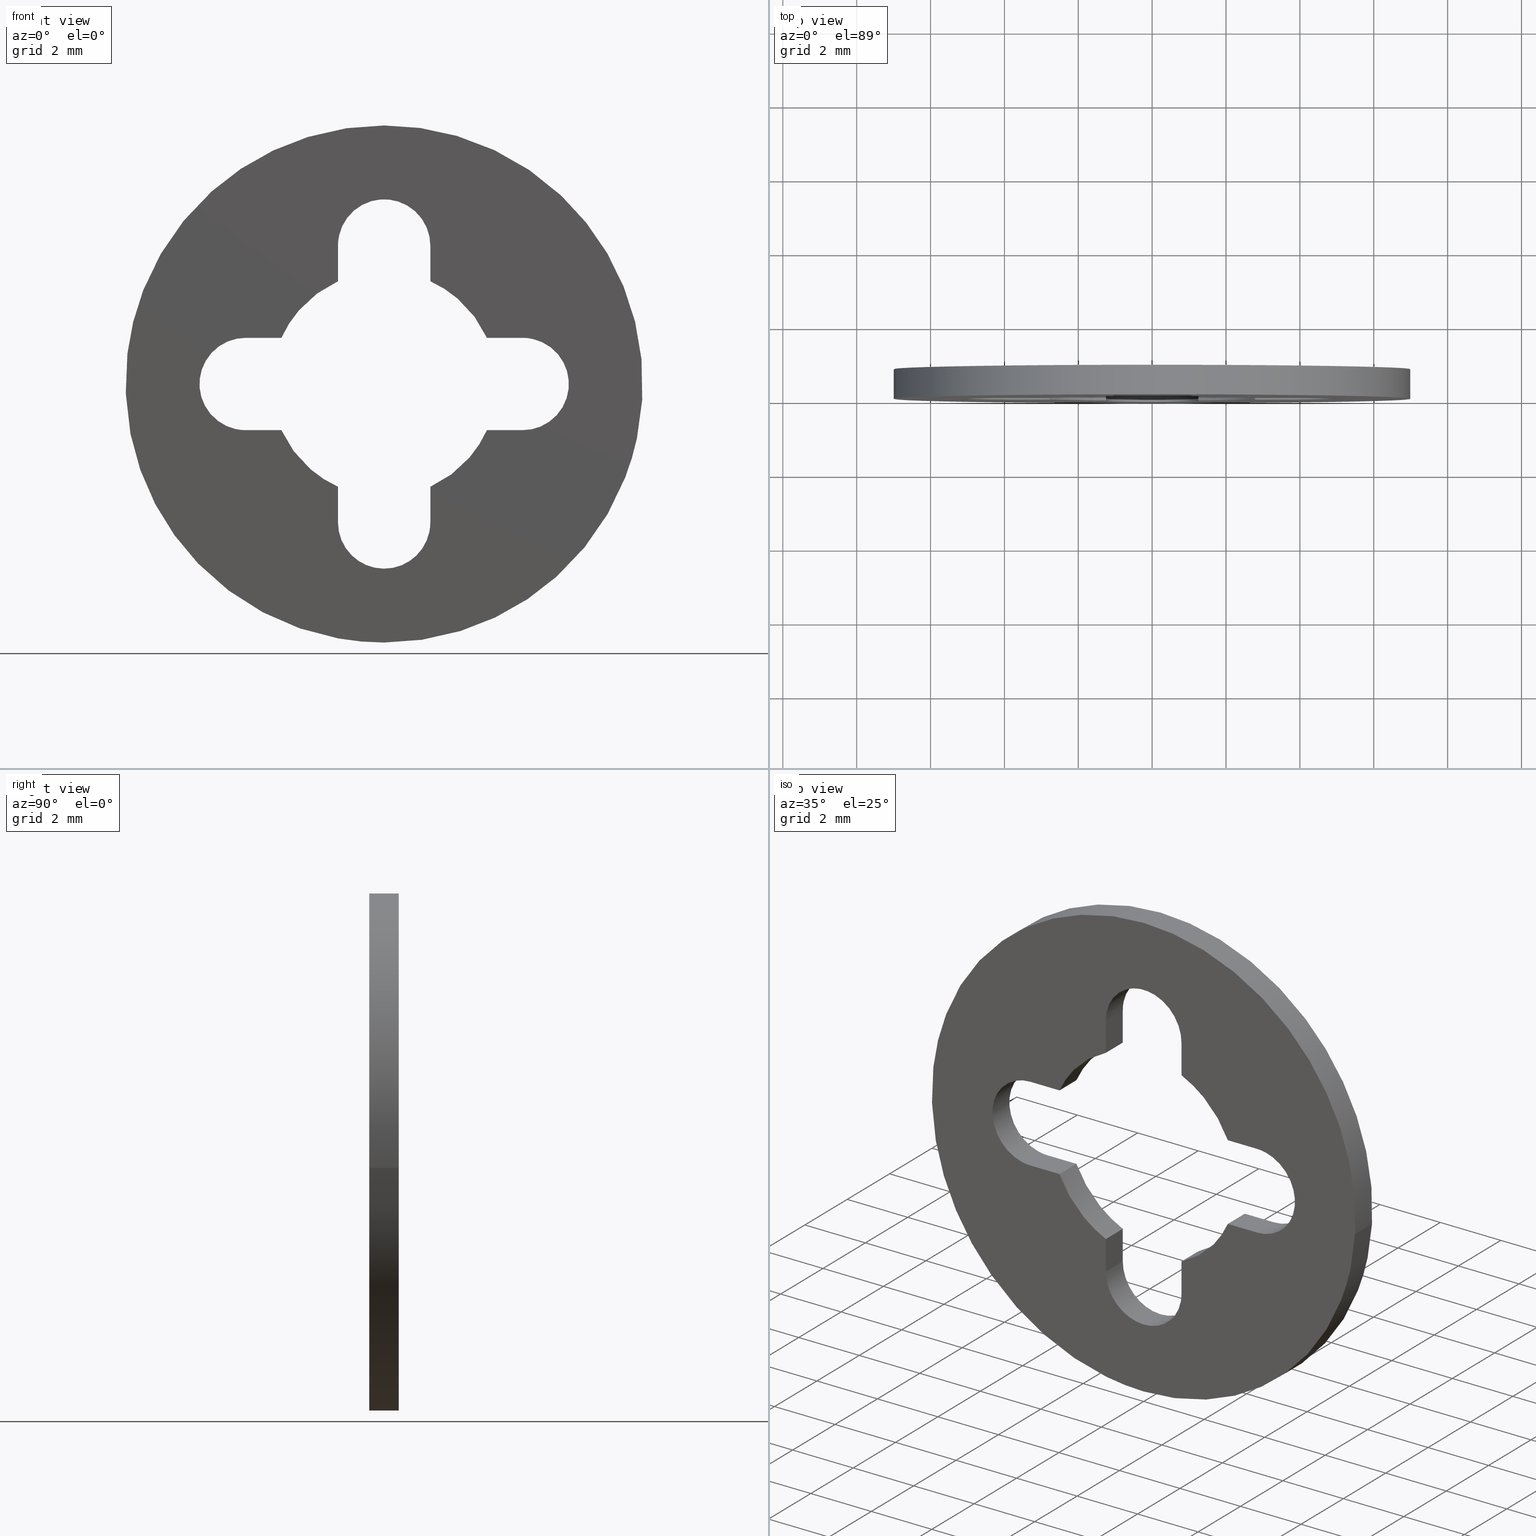
[diagram: canonical four-view strip — front | top / right | iso, engineering-drawing reading convention]
A machine part, canonical four-view strip (front | top / right | iso — engineering-drawing reading convention). The complete STEP part file that produces these views, byte-faithful:
ISO-10303-21;
HEADER;
/****************************************************************
 * Generated by software with PDE/Lib inside                    *
 * PDElib Version 4.4.1-0003, patched  Thursday August 19 11:58 *
 * International Technegroup Inc. (www.iti-oh.com)              *
 ****************************************************************/
FILE_DESCRIPTION((''),'2;1');
FILE_NAME('','2005-07-15T17:43:17',(''),(''),'','CADfix','');
FILE_SCHEMA(('AUTOMOTIVE_DESIGN'));
ENDSEC;
DATA;
#5=APPLICATION_CONTEXT('automotive design');
#6=APPLICATION_PROTOCOL_DEFINITION('Draft International Standard','automotive_design',1998,#5);
#7=PRODUCT_CONTEXT('None',#5,'mechanical');
#8=PRODUCT('washer','','None',(#7));
#9=PRODUCT_RELATED_PRODUCT_CATEGORY('part','description',(#8));
#10=PRODUCT_DEFINITION_FORMATION('None','None',#8);
#11=PRODUCT_DEFINITION_CONTEXT('part definition',#5,'design');
#12=PRODUCT_DEFINITION('None','None',#10,#11);
#18=(NAMED_UNIT(*)PLANE_ANGLE_UNIT()SI_UNIT($,.RADIAN.));
#19=DIMENSIONAL_EXPONENTS(0.0,0.0,0.0,0.0,0.0,0.0,0.0);
#20=PLANE_ANGLE_MEASURE_WITH_UNIT(PLANE_ANGLE_MEASURE(0.017453292500000),#18);
#24=(CONVERSION_BASED_UNIT('DEGREE',#20)NAMED_UNIT(#19)PLANE_ANGLE_UNIT());
#28=(NAMED_UNIT(*)SI_UNIT($,.STERADIAN.)SOLID_ANGLE_UNIT());
#32=(LENGTH_UNIT()NAMED_UNIT(*)SI_UNIT(.MILLI.,.METRE.));
#34=UNCERTAINTY_MEASURE_WITH_UNIT(LENGTH_MEASURE(0.001000000000000),#32,'DISTANCE_ACCURACY_VALUE','');
#36=(GEOMETRIC_REPRESENTATION_CONTEXT(3)GLOBAL_UNCERTAINTY_ASSIGNED_CONTEXT((#34))GLOBAL_UNIT_ASSIGNED_CONTEXT((#24,#28,#32))REPRESENTATION_CONTEXT('None','None'));
#37=AXIS2_PLACEMENT_3D('',#38,#39,#40);
#38=CARTESIAN_POINT('',(0.0,0.0,0.0));
#39=DIRECTION('',(0.0,0.0,1.0));
#40=DIRECTION('',(1.0,0.0,0.0));
#41=ADVANCED_BREP_SHAPE_REPRESENTATION('',(#37,#975),#36);
#42=PRODUCT_DEFINITION_SHAPE('','',#12);
#43=SHAPE_DEFINITION_REPRESENTATION(#42,#41);
#44=CARTESIAN_POINT('',(-6.951066684545665,0.820000000000024,0.826239642597309));
#45=CARTESIAN_POINT('',(-6.974713308140240,0.820000000000024,0.627303100465844));
#46=CARTESIAN_POINT('',(-6.986943588953067,0.820000000000024,0.427339776743999));
#47=CARTESIAN_POINT('',(-7.414283365697066,0.820000000000024,-6.559603812209068));
#48=CARTESIAN_POINT('',(-0.427339776743999,0.820000000000024,-6.986943588953067));
#49=CARTESIAN_POINT('',(6.559603812209068,0.820000000000024,-7.414283365697066));
#50=CARTESIAN_POINT('',(6.986943588953067,0.820000000000024,-0.427339776743999));
#51=CARTESIAN_POINT('',(-6.951066684545665,-0.020500000000001,0.826239642597309));
#52=CARTESIAN_POINT('',(-6.974713308140240,-0.020500000000001,0.627303100465844));
#53=CARTESIAN_POINT('',(-6.986943588953067,-0.020500000000001,0.427339776743999));
#54=CARTESIAN_POINT('',(-7.414283365697066,-0.020500000000001,-6.559603812209068));
#55=CARTESIAN_POINT('',(-0.427339776743999,-0.020500000000001,-6.986943588953067));
#56=CARTESIAN_POINT('',(6.559603812209068,-0.020500000000001,-7.414283365697066));
#57=CARTESIAN_POINT('',(6.986943588953067,-0.020500000000001,-0.427339776743999));
#65=(BOUNDED_SURFACE()B_SPLINE_SURFACE(2,1,((#44,#51),(#45,#52),(#46,#53),(#47,#54),(#48,#55),(#49,#56),(#50,#57)),.UNSPECIFIED.,.F.,.F.,.U.)B_SPLINE_SURFACE_WITH_KNOTS((3,2,2,3),(2,2),(0.0,0.463919189857867,12.061898936304530,23.659878682751181),(0.0,1.0),.UNSPECIFIED.)GEOMETRIC_REPRESENTATION_ITEM()RATIONAL_B_SPLINE_SURFACE(((0.977505800795127,0.977505800795127),(0.988284271247462,0.988284271247462),(1.0,1.0),(0.707106781186548,0.707106781186548),(1.0,1.0),(0.707106781186548,0.707106781186548),(1.0,1.0)))REPRESENTATION_ITEM('')SURFACE());
#66=CARTESIAN_POINT('',(-6.951067210688900,5.966703E-014,0.826235216185896));
#67=VERTEX_POINT('',#66);
#68=CARTESIAN_POINT('',(0.0,0.0,-7.0));
#69=VERTEX_POINT('',#68);
#70=CARTESIAN_POINT('',(-6.951067210688900,5.966703E-014,0.826235216185896));
#71=CARTESIAN_POINT('',(-7.0,0.0,0.414566600960148));
#72=CARTESIAN_POINT('',(-7.0,0.0,0.0));
#73=CARTESIAN_POINT('',(-6.999999999999999,0.0,-6.999999999999999));
#74=CARTESIAN_POINT('',(0.0,0.0,-7.0));
#82=(BOUNDED_CURVE()B_SPLINE_CURVE(2,(#70,#71,#72,#73,#74),.UNSPECIFIED.,.F.,.U.)B_SPLINE_CURVE_WITH_KNOTS((3,2,3),(0.229562581136241,0.250000000000000,0.500000000000000),.UNSPECIFIED.)CURVE()GEOMETRIC_REPRESENTATION_ITEM()RATIONAL_B_SPLINE_CURVE((0.956026965128767,0.976056074419019,1.0,0.707106781186547,1.0))REPRESENTATION_ITEM(''));
#83=EDGE_CURVE('',#67,#69,#82,.T.);
#84=ORIENTED_EDGE('',*,*,#83,.F.);
#85=CARTESIAN_POINT('',(-6.951067204199181,0.800000000000023,0.826235270783800));
#86=VERTEX_POINT('',#85);
#87=CARTESIAN_POINT('',(-6.951067204199181,0.800000000000023,0.826235270783800));
#88=CARTESIAN_POINT('',(-6.951067210688900,5.966703E-014,0.826235216185896));
#89=QUASI_UNIFORM_CURVE('',1,(#87,#88),.UNSPECIFIED.,.F.,.U.);
#90=EDGE_CURVE('',#86,#67,#89,.T.);
#91=ORIENTED_EDGE('',*,*,#90,.F.);
#92=CARTESIAN_POINT('',(0.0,0.800000000000023,-7.0));
#93=VERTEX_POINT('',#92);
#94=CARTESIAN_POINT('',(-6.951067204199181,0.800000000000023,0.826235270783800));
#95=CARTESIAN_POINT('',(-7.0,0.800000000000023,0.414566628547695));
#96=CARTESIAN_POINT('',(-7.0,0.800000000000023,0.0));
#97=CARTESIAN_POINT('',(-6.999999999999999,0.800000000000023,-6.999999999999999));
#98=CARTESIAN_POINT('',(0.0,0.800000000000023,-7.0));
#106=(BOUNDED_CURVE()B_SPLINE_CURVE(2,(#94,#95,#96,#97,#98),.UNSPECIFIED.,.F.,.U.)B_SPLINE_CURVE_WITH_KNOTS((3,2,3),(0.229562579808786,0.250000000000000,0.500000000000000),.UNSPECIFIED.)CURVE()GEOMETRIC_REPRESENTATION_ITEM()RATIONAL_B_SPLINE_CURVE((0.956026962526900,0.976056072863809,1.0,0.707106781186547,1.0))REPRESENTATION_ITEM(''));
#107=EDGE_CURVE('',#86,#93,#106,.T.);
#108=ORIENTED_EDGE('',*,*,#107,.T.);
#109=CARTESIAN_POINT('',(6.986943739989564,0.800000000000023,-0.427337307304794));
#110=VERTEX_POINT('',#109);
#111=CARTESIAN_POINT('',(0.0,0.800000000000023,-7.0));
#112=CARTESIAN_POINT('',(6.584944800046739,0.800000000000023,-6.999999999999999));
#113=CARTESIAN_POINT('',(6.986943739989564,0.800000000000023,-0.427337307304794));
#121=(BOUNDED_CURVE()B_SPLINE_CURVE(2,(#111,#112,#113),.UNSPECIFIED.,.F.,.U.)B_SPLINE_CURVE_WITH_KNOTS((3,3),(0.500000000000000,0.739333023226263),.UNSPECIFIED.)CURVE()GEOMETRIC_REPRESENTATION_ITEM()RATIONAL_B_SPLINE_CURVE((1.0,0.719603921835620,0.976072172374189))REPRESENTATION_ITEM(''));
#122=EDGE_CURVE('',#93,#110,#121,.T.);
#123=ORIENTED_EDGE('',*,*,#122,.T.);
#124=CARTESIAN_POINT('',(6.986943741874936,3.927761E-014,-0.427337276478874));
#125=VERTEX_POINT('',#124);
#126=CARTESIAN_POINT('',(6.986943739989564,0.800000000000023,-0.427337307304794));
#127=CARTESIAN_POINT('',(6.986943741874936,3.927761E-014,-0.427337276478874));
#128=QUASI_UNIFORM_CURVE('',1,(#126,#127),.UNSPECIFIED.,.F.,.U.);
#129=EDGE_CURVE('',#110,#125,#128,.T.);
#130=ORIENTED_EDGE('',*,*,#129,.T.);
#131=CARTESIAN_POINT('',(0.0,0.0,-7.0));
#132=CARTESIAN_POINT('',(6.584944829153351,0.0,-6.999999999999999));
#133=CARTESIAN_POINT('',(6.986943741874936,3.927761E-014,-0.427337276478874));
#141=(BOUNDED_CURVE()B_SPLINE_CURVE(2,(#131,#132,#133),.UNSPECIFIED.,.F.,.U.)B_SPLINE_CURVE_WITH_KNOTS((3,3),(0.500000000000000,0.739333023987528),.UNSPECIFIED.)CURVE()GEOMETRIC_REPRESENTATION_ITEM()RATIONAL_B_SPLINE_CURVE((1.0,0.719603920943743,0.976072174005725))REPRESENTATION_ITEM(''));
#142=EDGE_CURVE('',#69,#125,#141,.T.);
#143=ORIENTED_EDGE('',*,*,#142,.F.);
#144=EDGE_LOOP('',(#84,#91,#108,#123,#130,#143));
#145=FACE_OUTER_BOUND('',#144,.T.);
#146=ADVANCED_FACE('',(#145),#65,.T.);
#147=CARTESIAN_POINT('',(6.986943588953067,0.820000000000024,-0.427339776743999));
#148=CARTESIAN_POINT('',(7.414283365697066,0.820000000000024,6.559603812209068));
#149=CARTESIAN_POINT('',(0.427339776743999,0.820000000000024,6.986943588953067));
#150=CARTESIAN_POINT('',(-6.170804435876506,0.820000000000024,7.390503377127691));
#151=CARTESIAN_POINT('',(-6.951066684545665,0.820000000000024,0.826239642597309));
#152=CARTESIAN_POINT('',(6.986943588953067,-0.020500000000001,-0.427339776743999));
#153=CARTESIAN_POINT('',(7.414283365697066,-0.020500000000001,6.559603812209068));
#154=CARTESIAN_POINT('',(0.427339776743999,-0.020500000000001,6.986943588953067));
#155=CARTESIAN_POINT('',(-6.170804435876506,-0.020500000000001,7.390503377127691));
#156=CARTESIAN_POINT('',(-6.951066684545665,-0.020500000000001,0.826239642597309));
#164=(BOUNDED_SURFACE()B_SPLINE_SURFACE(2,1,((#147,#152),(#148,#153),(#149,#154),(#150,#155),(#151,#156)),.UNSPECIFIED.,.F.,.F.,.U.)B_SPLINE_SURFACE_WITH_KNOTS((3,2,3),(2,2),(0.0,11.597979746446660,22.732040303035451),(0.0,1.0),.UNSPECIFIED.)GEOMETRIC_REPRESENTATION_ITEM()RATIONAL_B_SPLINE_SURFACE(((1.0,1.0),(0.707106781186548,0.707106781186548),(1.0,1.0),(0.718822509939086,0.718822509939086),(0.977505800795127,0.977505800795127)))REPRESENTATION_ITEM('')SURFACE());
#165=CARTESIAN_POINT('',(0.0,0.0,7.0));
#166=VERTEX_POINT('',#165);
#167=CARTESIAN_POINT('',(0.0,0.0,7.0));
#168=CARTESIAN_POINT('',(-6.217225668633081,0.0,7.0));
#169=CARTESIAN_POINT('',(-6.951067210688900,5.966703E-014,0.826235216185896));
#177=(BOUNDED_CURVE()B_SPLINE_CURVE(2,(#167,#168,#169),.UNSPECIFIED.,.F.,.U.)B_SPLINE_CURVE_WITH_KNOTS((3,3),(0.0,0.229562581136241),.UNSPECIFIED.)CURVE()GEOMETRIC_REPRESENTATION_ITEM()RATIONAL_B_SPLINE_CURVE((1.0,0.731050706767529,0.956026965128767))REPRESENTATION_ITEM(''));
#178=EDGE_CURVE('',#166,#67,#177,.T.);
#179=ORIENTED_EDGE('',*,*,#178,.F.);
#180=CARTESIAN_POINT('',(6.986943741874936,3.927761E-014,-0.427337276478874));
#181=CARTESIAN_POINT('',(7.0,0.0,-0.213868089452344));
#182=CARTESIAN_POINT('',(7.0,0.0,0.0));
#183=CARTESIAN_POINT('',(6.999999999999999,0.0,6.999999999999999));
#184=CARTESIAN_POINT('',(0.0,0.0,7.0));
#192=(BOUNDED_CURVE()B_SPLINE_CURVE(2,(#180,#181,#182,#183,#184),.UNSPECIFIED.,.F.,.U.)B_SPLINE_CURVE_WITH_KNOTS((3,2,3),(0.739333023987528,0.750000000000000,1.0),.UNSPECIFIED.)CURVE()GEOMETRIC_REPRESENTATION_ITEM()RATIONAL_B_SPLINE_CURVE((0.976072174005725,0.987502860242804,1.0,0.707106781186547,1.0))REPRESENTATION_ITEM(''));
#193=EDGE_CURVE('',#125,#166,#192,.T.);
#194=ORIENTED_EDGE('',*,*,#193,.F.);
#195=ORIENTED_EDGE('',*,*,#129,.F.);
#196=CARTESIAN_POINT('',(0.0,0.800000000000023,7.0));
#197=VERTEX_POINT('',#196);
#198=CARTESIAN_POINT('',(6.986943739989564,0.800000000000023,-0.427337307304794));
#199=CARTESIAN_POINT('',(7.0,0.800000000000023,-0.213868104908519));
#200=CARTESIAN_POINT('',(7.0,0.800000000000023,0.0));
#201=CARTESIAN_POINT('',(6.999999999999999,0.800000000000023,6.999999999999999));
#202=CARTESIAN_POINT('',(0.0,0.800000000000023,7.0));
#210=(BOUNDED_CURVE()B_SPLINE_CURVE(2,(#198,#199,#200,#201,#202),.UNSPECIFIED.,.F.,.U.)B_SPLINE_CURVE_WITH_KNOTS((3,2,3),(0.739333023226263,0.750000000000000,1.0),.UNSPECIFIED.)CURVE()GEOMETRIC_REPRESENTATION_ITEM()RATIONAL_B_SPLINE_CURVE((0.976072172374189,0.987502859350927,1.0,0.707106781186547,1.0))REPRESENTATION_ITEM(''));
#211=EDGE_CURVE('',#110,#197,#210,.T.);
#212=ORIENTED_EDGE('',*,*,#211,.T.);
#213=CARTESIAN_POINT('',(0.0,0.800000000000023,7.0));
#214=CARTESIAN_POINT('',(-6.217225619455447,0.800000000000023,7.0));
#215=CARTESIAN_POINT('',(-6.951067204199181,0.800000000000023,0.826235270783800));
#223=(BOUNDED_CURVE()B_SPLINE_CURVE(2,(#213,#214,#215),.UNSPECIFIED.,.F.,.U.)B_SPLINE_CURVE_WITH_KNOTS((3,3),(0.0,0.229562579808786),.UNSPECIFIED.)CURVE()GEOMETRIC_REPRESENTATION_ITEM()RATIONAL_B_SPLINE_CURVE((1.0,0.731050708322738,0.956026962526900))REPRESENTATION_ITEM(''));
#224=EDGE_CURVE('',#197,#86,#223,.T.);
#225=ORIENTED_EDGE('',*,*,#224,.T.);
#226=ORIENTED_EDGE('',*,*,#90,.T.);
#227=EDGE_LOOP('',(#179,#194,#195,#212,#225,#226));
#228=FACE_OUTER_BOUND('',#227,.T.);
#229=ADVANCED_FACE('',(#228),#164,.T.);
#230=CARTESIAN_POINT('',(2.733738332712779,-0.039959998449446,1.250000000000000));
#231=CARTESIAN_POINT('',(3.798347345743374,-0.039959998449446,1.250000000000000));
#232=CARTESIAN_POINT('',(2.733738332712779,0.839960019907141,1.250000000000000));
#233=CARTESIAN_POINT('',(3.798347345743374,0.839960019907141,1.250000000000000));
#234=B_SPLINE_SURFACE_WITH_KNOTS('',1,1,((#230,#232),(#231,#233)),.UNSPECIFIED.,.F.,.F.,.U.,(2,2),(2,2),(0.041708428821340,0.958291682937369),(0.041708334948495,0.958291687403247),.UNSPECIFIED.);
#235=CARTESIAN_POINT('',(3.750000000000000,0.0,1.250000000000000));
#236=VERTEX_POINT('',#235);
#237=CARTESIAN_POINT('',(2.782085548648710,0.0,1.250000000000000));
#238=VERTEX_POINT('',#237);
#239=CARTESIAN_POINT('',(3.750000000000000,0.0,1.250000000000000));
#240=CARTESIAN_POINT('',(2.782085548648710,0.0,1.250000000000000));
#241=QUASI_UNIFORM_CURVE('',1,(#239,#240),.UNSPECIFIED.,.F.,.U.);
#242=EDGE_CURVE('',#236,#238,#241,.T.);
#243=ORIENTED_EDGE('',*,*,#242,.T.);
#244=CARTESIAN_POINT('',(2.782085548648710,0.800000000000000,1.250000000000000));
#245=VERTEX_POINT('',#244);
#246=CARTESIAN_POINT('',(2.782085548648710,0.800000000000000,1.250000000000000));
#247=CARTESIAN_POINT('',(2.782085548648710,0.0,1.250000000000000));
#248=QUASI_UNIFORM_CURVE('',1,(#246,#247),.UNSPECIFIED.,.F.,.U.);
#249=EDGE_CURVE('',#245,#238,#248,.T.);
#250=ORIENTED_EDGE('',*,*,#249,.F.);
#251=CARTESIAN_POINT('',(3.750000000000000,0.800000000000023,1.250000000000000));
#252=VERTEX_POINT('',#251);
#253=CARTESIAN_POINT('',(3.750000000000000,0.800000000000023,1.250000000000000));
#254=CARTESIAN_POINT('',(2.782085548648710,0.800000000000000,1.250000000000000));
#255=QUASI_UNIFORM_CURVE('',1,(#253,#254),.UNSPECIFIED.,.F.,.U.);
#256=EDGE_CURVE('',#252,#245,#255,.T.);
#257=ORIENTED_EDGE('',*,*,#256,.F.);
#258=CARTESIAN_POINT('',(3.750000000000000,0.800000000000023,1.250000000000000));
#259=CARTESIAN_POINT('',(3.750000000000000,0.0,1.250000000000000));
#260=QUASI_UNIFORM_CURVE('',1,(#258,#259),.UNSPECIFIED.,.F.,.U.);
#261=EDGE_CURVE('',#252,#236,#260,.T.);
#262=ORIENTED_EDGE('',*,*,#261,.T.);
#263=EDGE_LOOP('',(#243,#250,#257,#262));
#264=FACE_OUTER_BOUND('',#263,.T.);
#265=ADVANCED_FACE('',(#264),#234,.F.);
#266=CARTESIAN_POINT('',(3.717278814615157,0.820000000000024,1.249571656219446));
#267=CARTESIAN_POINT('',(3.717278814615157,-0.020500000000001,1.249571656219446));
#268=CARTESIAN_POINT('',(5.034052591053624,0.820000000000023,1.284052591053628));
#269=CARTESIAN_POINT('',(5.034052591053624,-0.020500000000001,1.284052591053628));
#270=CARTESIAN_POINT('',(4.999571656219446,0.820000000000024,-0.032721185384839));
#271=CARTESIAN_POINT('',(4.999571656219446,-0.020500000000001,-0.032721185384839));
#272=CARTESIAN_POINT('',(4.965090721385269,0.820000000000023,-1.349494961823307));
#273=CARTESIAN_POINT('',(4.965090721385269,-0.020500000000001,-1.349494961823307));
#274=CARTESIAN_POINT('',(3.651926130340196,0.820000000000024,-1.246146667166411));
#275=CARTESIAN_POINT('',(3.651926130340196,-0.020500000000001,-1.246146667166411));
#283=(BOUNDED_SURFACE()B_SPLINE_SURFACE(1,2,((#266,#268,#270,#272,#274),(#267,#269,#271,#273,#275)),.UNSPECIFIED.,.F.,.F.,.U.)B_SPLINE_SURFACE_WITH_KNOTS((2,2),(3,2,3),(0.0,1.0),(0.0,2.148169529834180,4.296339059668361),.UNSPECIFIED.)GEOMETRIC_REPRESENTATION_ITEM()RATIONAL_B_SPLINE_SURFACE(((1.0,0.688354575693754,1.0,0.688354575693754,1.0),(1.0,0.688354575693754,1.0,0.688354575693754,1.0)))REPRESENTATION_ITEM('')SURFACE());
#284=CARTESIAN_POINT('',(3.750000000000000,0.0,-1.250000000000000));
#285=VERTEX_POINT('',#284);
#286=CARTESIAN_POINT('',(3.750000000000000,0.0,-1.250000000000000));
#287=CARTESIAN_POINT('',(5.000000000000001,0.0,-1.250000000000000));
#288=CARTESIAN_POINT('',(5.0,0.0,0.0));
#289=CARTESIAN_POINT('',(5.000000000000001,0.0,1.250000000000000));
#290=CARTESIAN_POINT('',(3.750000000000000,0.0,1.250000000000000));
#298=(BOUNDED_CURVE()B_SPLINE_CURVE(2,(#286,#287,#288,#289,#290),.UNSPECIFIED.,.F.,.U.)B_SPLINE_CURVE_WITH_KNOTS((3,2,3),(0.0,0.500000000000000,1.0),.UNSPECIFIED.)CURVE()GEOMETRIC_REPRESENTATION_ITEM()RATIONAL_B_SPLINE_CURVE((1.0,0.707106781186548,1.0,0.707106781186548,1.0))REPRESENTATION_ITEM(''));
#299=EDGE_CURVE('',#285,#236,#298,.T.);
#300=ORIENTED_EDGE('',*,*,#299,.T.);
#301=ORIENTED_EDGE('',*,*,#261,.F.);
#302=CARTESIAN_POINT('',(3.750000000000000,0.800000000000023,-1.250000000000000));
#303=VERTEX_POINT('',#302);
#304=CARTESIAN_POINT('',(3.750000000000000,0.800000000000023,-1.250000000000000));
#305=CARTESIAN_POINT('',(5.000000000000001,0.800000000000023,-1.250000000000000));
#306=CARTESIAN_POINT('',(5.0,0.800000000000023,0.0));
#307=CARTESIAN_POINT('',(5.000000000000001,0.800000000000023,1.250000000000000));
#308=CARTESIAN_POINT('',(3.750000000000000,0.800000000000023,1.250000000000000));
#316=(BOUNDED_CURVE()B_SPLINE_CURVE(2,(#304,#305,#306,#307,#308),.UNSPECIFIED.,.F.,.U.)B_SPLINE_CURVE_WITH_KNOTS((3,2,3),(0.0,0.500000000000000,1.0),.UNSPECIFIED.)CURVE()GEOMETRIC_REPRESENTATION_ITEM()RATIONAL_B_SPLINE_CURVE((1.0,0.707106781186548,1.0,0.707106781186548,1.0))REPRESENTATION_ITEM(''));
#317=EDGE_CURVE('',#303,#252,#316,.T.);
#318=ORIENTED_EDGE('',*,*,#317,.F.);
#319=CARTESIAN_POINT('',(3.750000000000000,0.800000000000023,-1.250000000000000));
#320=CARTESIAN_POINT('',(3.750000000000000,0.0,-1.250000000000000));
#321=QUASI_UNIFORM_CURVE('',1,(#319,#320),.UNSPECIFIED.,.F.,.U.);
#322=EDGE_CURVE('',#303,#285,#321,.T.);
#323=ORIENTED_EDGE('',*,*,#322,.T.);
#324=EDGE_LOOP('',(#300,#301,#318,#323));
#325=FACE_OUTER_BOUND('',#324,.T.);
#326=ADVANCED_FACE('',(#325),#283,.F.);
#327=CARTESIAN_POINT('',(3.798347318052850,-0.039959998449446,-1.250000000000000));
#328=CARTESIAN_POINT('',(2.733738343095644,-0.039959998449446,-1.250000000000000));
#329=CARTESIAN_POINT('',(3.798347318052850,0.839960019907141,-1.250000000000000));
#330=CARTESIAN_POINT('',(2.733738343095644,0.839960019907141,-1.250000000000000));
#331=B_SPLINE_SURFACE_WITH_KNOTS('',1,1,((#327,#329),(#328,#330)),.UNSPECIFIED.,.F.,.F.,.U.,(2,2),(2,2),(0.041708340902999,0.958291562239453),(0.041708334948495,0.958291687403247),.UNSPECIFIED.);
#332=CARTESIAN_POINT('',(2.782085548648710,0.0,-1.250000000000000));
#333=VERTEX_POINT('',#332);
#334=CARTESIAN_POINT('',(2.782085548648710,0.0,-1.250000000000000));
#335=CARTESIAN_POINT('',(3.750000000000000,0.0,-1.250000000000000));
#336=QUASI_UNIFORM_CURVE('',1,(#334,#335),.UNSPECIFIED.,.F.,.U.);
#337=EDGE_CURVE('',#333,#285,#336,.T.);
#338=ORIENTED_EDGE('',*,*,#337,.T.);
#339=ORIENTED_EDGE('',*,*,#322,.F.);
#340=CARTESIAN_POINT('',(2.782085548648710,0.800000000000023,-1.250000000000000));
#341=VERTEX_POINT('',#340);
#342=CARTESIAN_POINT('',(2.782085548648710,0.800000000000023,-1.250000000000000));
#343=CARTESIAN_POINT('',(3.750000000000000,0.800000000000023,-1.250000000000000));
#344=QUASI_UNIFORM_CURVE('',1,(#342,#343),.UNSPECIFIED.,.F.,.U.);
#345=EDGE_CURVE('',#341,#303,#344,.T.);
#346=ORIENTED_EDGE('',*,*,#345,.F.);
#347=CARTESIAN_POINT('',(2.782085548648710,0.800000000000023,-1.250000000000000));
#348=CARTESIAN_POINT('',(2.782085548648710,0.0,-1.250000000000000));
#349=QUASI_UNIFORM_CURVE('',1,(#347,#348),.UNSPECIFIED.,.F.,.U.);
#350=EDGE_CURVE('',#341,#333,#349,.T.);
#351=ORIENTED_EDGE('',*,*,#350,.T.);
#352=EDGE_LOOP('',(#338,#339,#346,#351));
#353=FACE_OUTER_BOUND('',#352,.T.);
#354=ADVANCED_FACE('',(#353),#331,.F.);
#355=CARTESIAN_POINT('',(2.821779281149167,0.820000000000024,-1.157610335336241));
#356=CARTESIAN_POINT('',(2.821779281149167,-0.020500000000001,-1.157610335336241));
#357=CARTESIAN_POINT('',(2.335935192477741,0.820000000000024,-2.341898987081582));
#358=CARTESIAN_POINT('',(2.335935192477741,-0.020500000000001,-2.341898987081582));
#359=CARTESIAN_POINT('',(1.150411582382132,0.820000000000024,-2.824721790038984));
#360=CARTESIAN_POINT('',(1.150411582382132,-0.020500000000001,-2.824721790038984));
#368=(BOUNDED_SURFACE()B_SPLINE_SURFACE(1,2,((#355,#357,#359),(#356,#358,#360)),.UNSPECIFIED.,.F.,.F.,.U.)B_SPLINE_SURFACE_WITH_KNOTS((2,2),(3,3),(0.0,1.0),(0.0,2.456348212603611),.UNSPECIFIED.)GEOMETRIC_REPRESENTATION_ITEM()RATIONAL_B_SPLINE_SURFACE(((1.0,0.918097380520157,0.991375481329810),(1.0,0.918097380520157,0.991375481329810)))REPRESENTATION_ITEM('')SURFACE());
#369=CARTESIAN_POINT('',(1.250000000000000,0.0,-2.782085548648710));
#370=VERTEX_POINT('',#369);
#371=CARTESIAN_POINT('',(1.250000000000000,0.0,-2.782085548648711));
#372=CARTESIAN_POINT('',(2.307118707617101,0.0,-2.307118707617101));
#373=CARTESIAN_POINT('',(2.782085548648711,0.0,-1.250000000000001));
#381=(BOUNDED_CURVE()B_SPLINE_CURVE(2,(#371,#372,#373),.UNSPECIFIED.,.F.,.U.)CURVE()GEOMETRIC_REPRESENTATION_ITEM()QUASI_UNIFORM_CURVE()RATIONAL_B_SPLINE_CURVE((1.0,0.934791814352061,1.0))REPRESENTATION_ITEM(''));
#382=EDGE_CURVE('',#370,#333,#381,.T.);
#383=ORIENTED_EDGE('',*,*,#382,.T.);
#384=ORIENTED_EDGE('',*,*,#350,.F.);
#385=CARTESIAN_POINT('',(1.250000000000000,0.800000000000023,-2.782085548648710));
#386=VERTEX_POINT('',#385);
#387=CARTESIAN_POINT('',(1.250000000000000,0.800000000000023,-2.782085548648711));
#388=CARTESIAN_POINT('',(2.307118707617101,0.800000000000023,-2.307118707617101));
#389=CARTESIAN_POINT('',(2.782085548648711,0.800000000000023,-1.250000000000001));
#397=(BOUNDED_CURVE()B_SPLINE_CURVE(2,(#387,#388,#389),.UNSPECIFIED.,.F.,.U.)CURVE()GEOMETRIC_REPRESENTATION_ITEM()QUASI_UNIFORM_CURVE()RATIONAL_B_SPLINE_CURVE((1.0,0.934791814352061,1.0))REPRESENTATION_ITEM(''));
#398=EDGE_CURVE('',#386,#341,#397,.T.);
#399=ORIENTED_EDGE('',*,*,#398,.F.);
#400=CARTESIAN_POINT('',(1.250000000000000,0.800000000000023,-2.782085548648710));
#401=CARTESIAN_POINT('',(1.250000000000000,0.0,-2.782085548648710));
#402=QUASI_UNIFORM_CURVE('',1,(#400,#401),.UNSPECIFIED.,.F.,.U.);
#403=EDGE_CURVE('',#386,#370,#402,.T.);
#404=ORIENTED_EDGE('',*,*,#403,.T.);
#405=EDGE_LOOP('',(#383,#384,#399,#404));
#406=FACE_OUTER_BOUND('',#405,.T.);
#407=ADVANCED_FACE('',(#406),#368,.F.);
#408=CARTESIAN_POINT('',(1.250000000000000,-0.039959998449446,-2.733738347068223));
#409=CARTESIAN_POINT('',(1.250000000000000,-0.039959998449446,-3.798347043991126));
#410=CARTESIAN_POINT('',(1.250000000000000,0.839960019907141,-2.733738347068223));
#411=CARTESIAN_POINT('',(1.250000000000000,0.839960019907141,-3.798347043991126));
#412=B_SPLINE_SURFACE_WITH_KNOTS('',1,1,((#408,#410),(#409,#411)),.UNSPECIFIED.,.F.,.F.,.U.,(2,2),(2,2),(0.041708431798592,0.958291620355472),(0.041708334948495,0.958291687403247),.UNSPECIFIED.);
#413=CARTESIAN_POINT('',(1.249999999999980,0.0,-3.749999781833845));
#414=VERTEX_POINT('',#413);
#415=CARTESIAN_POINT('',(1.249999999999980,0.0,-3.749999781833845));
#416=CARTESIAN_POINT('',(1.250000000000000,0.0,-2.782085548648710));
#417=QUASI_UNIFORM_CURVE('',1,(#415,#416),.UNSPECIFIED.,.F.,.U.);
#418=EDGE_CURVE('',#414,#370,#417,.T.);
#419=ORIENTED_EDGE('',*,*,#418,.T.);
#420=ORIENTED_EDGE('',*,*,#403,.F.);
#421=CARTESIAN_POINT('',(1.249999999999980,0.800000000000023,-3.749999781833845));
#422=VERTEX_POINT('',#421);
#423=CARTESIAN_POINT('',(1.249999999999980,0.800000000000023,-3.749999781833845));
#424=CARTESIAN_POINT('',(1.250000000000000,0.800000000000023,-2.782085548648710));
#425=QUASI_UNIFORM_CURVE('',1,(#423,#424),.UNSPECIFIED.,.F.,.U.);
#426=EDGE_CURVE('',#422,#386,#425,.T.);
#427=ORIENTED_EDGE('',*,*,#426,.F.);
#428=CARTESIAN_POINT('',(1.249999999999980,0.800000000000023,-3.749999781833845));
#429=CARTESIAN_POINT('',(1.249999999999980,0.0,-3.749999781833845));
#430=QUASI_UNIFORM_CURVE('',1,(#428,#429),.UNSPECIFIED.,.F.,.U.);
#431=EDGE_CURVE('',#422,#414,#430,.T.);
#432=ORIENTED_EDGE('',*,*,#431,.T.);
#433=EDGE_LOOP('',(#419,#420,#427,#432));
#434=FACE_OUTER_BOUND('',#433,.T.);
#435=ADVANCED_FACE('',(#434),#412,.F.);
#436=CARTESIAN_POINT('',(1.248810276977322,0.820000000000024,-3.695475765793332));
#437=CARTESIAN_POINT('',(1.248810276977322,-0.020500000000001,-3.695475765793332));
#438=CARTESIAN_POINT('',(1.306771244940478,0.820000000000024,-5.023000186981649));
#439=CARTESIAN_POINT('',(1.306771244940478,-0.020500000000001,-5.023000186981649));
#440=CARTESIAN_POINT('',(-0.021815508046606,0.820000000000024,-4.999809618945488));
#441=CARTESIAN_POINT('',(-0.021815508046606,-0.020500000000001,-4.999809618945488));
#442=CARTESIAN_POINT('',(-1.350402261033690,0.820000000000024,-4.976619050909325));
#443=CARTESIAN_POINT('',(-1.350402261033690,-0.020500000000001,-4.976619050909325));
#444=CARTESIAN_POINT('',(-1.246146667166408,0.820000000000024,-3.651926130340192));
#445=CARTESIAN_POINT('',(-1.246146667166408,-0.020500000000001,-3.651926130340192));
#453=(BOUNDED_SURFACE()B_SPLINE_SURFACE(1,2,((#436,#438,#440,#442,#444),(#437,#439,#441,#443,#445)),.UNSPECIFIED.,.F.,.F.,.U.)B_SPLINE_SURFACE_WITH_KNOTS((2,2),(3,2,3),(0.0,1.0),(0.0,2.161103494586486,4.322206989172972),.UNSPECIFIED.)GEOMETRIC_REPRESENTATION_ITEM()RATIONAL_B_SPLINE_SURFACE(((1.0,0.685182990326359,1.0,0.685182990326359,1.0),(1.0,0.685182990326359,1.0,0.685182990326359,1.0)))REPRESENTATION_ITEM('')SURFACE());
#454=CARTESIAN_POINT('',(-1.250000000000000,0.0,-3.750000000000000));
#455=VERTEX_POINT('',#454);
#456=CARTESIAN_POINT('',(-1.250000000000000,0.0,-3.750000000000000));
#457=CARTESIAN_POINT('',(-1.250000000000000,0.0,-4.471687884968399));
#458=CARTESIAN_POINT('',(-0.624999937020855,0.0,-4.832531791091572));
#459=CARTESIAN_POINT('',(0.000000125958290,0.0,-5.193375697214743));
#460=CARTESIAN_POINT('',(0.625000125958284,0.0,-4.832531682008489));
#461=CARTESIAN_POINT('',(1.250000125958278,0.0,-4.471687666802235));
#462=CARTESIAN_POINT('',(1.249999999999981,0.0,-3.749999781833845));
#470=(BOUNDED_CURVE()B_SPLINE_CURVE(2,(#456,#457,#458,#459,#460,#461,#462),.UNSPECIFIED.,.F.,.U.)B_SPLINE_CURVE_WITH_KNOTS((3,2,2,3),(0.0,0.333333333333333,0.666666666666667,1.0),.UNSPECIFIED.)CURVE()GEOMETRIC_REPRESENTATION_ITEM()RATIONAL_B_SPLINE_CURVE((1.0,0.866025389240028,1.0,0.866025389240028,1.0,0.866025389240028,1.0))REPRESENTATION_ITEM(''));
#471=EDGE_CURVE('',#455,#414,#470,.T.);
#472=ORIENTED_EDGE('',*,*,#471,.T.);
#473=ORIENTED_EDGE('',*,*,#431,.F.);
#474=CARTESIAN_POINT('',(-1.250000000000000,0.800000000000023,-3.750000000000000));
#475=VERTEX_POINT('',#474);
#476=CARTESIAN_POINT('',(-1.250000000000000,0.800000000000023,-3.750000000000000));
#477=CARTESIAN_POINT('',(-1.250000000000000,0.800000000000023,-4.471687884968399));
#478=CARTESIAN_POINT('',(-0.624999937020855,0.800000000000023,-4.832531791091572));
#479=CARTESIAN_POINT('',(0.000000125958290,0.800000000000023,-5.193375697214743));
#480=CARTESIAN_POINT('',(0.625000125958284,0.800000000000023,-4.832531682008489));
#481=CARTESIAN_POINT('',(1.250000125958278,0.800000000000023,-4.471687666802235));
#482=CARTESIAN_POINT('',(1.249999999999981,0.800000000000023,-3.749999781833845));
#490=(BOUNDED_CURVE()B_SPLINE_CURVE(2,(#476,#477,#478,#479,#480,#481,#482),.UNSPECIFIED.,.F.,.U.)B_SPLINE_CURVE_WITH_KNOTS((3,2,2,3),(0.0,0.333333333333333,0.666666666666667,1.0),.UNSPECIFIED.)CURVE()GEOMETRIC_REPRESENTATION_ITEM()RATIONAL_B_SPLINE_CURVE((1.0,0.866025389240028,1.0,0.866025389240028,1.0,0.866025389240028,1.0))REPRESENTATION_ITEM(''));
#491=EDGE_CURVE('',#475,#422,#490,.T.);
#492=ORIENTED_EDGE('',*,*,#491,.F.);
#493=CARTESIAN_POINT('',(-1.250000000000000,0.800000000000023,-3.750000000000000));
#494=CARTESIAN_POINT('',(-1.250000000000000,0.0,-3.750000000000000));
#495=QUASI_UNIFORM_CURVE('',1,(#493,#494),.UNSPECIFIED.,.F.,.U.);
#496=EDGE_CURVE('',#475,#455,#495,.T.);
#497=ORIENTED_EDGE('',*,*,#496,.T.);
#498=EDGE_LOOP('',(#472,#473,#492,#497));
#499=FACE_OUTER_BOUND('',#498,.T.);
#500=ADVANCED_FACE('',(#499),#453,.F.);
#501=CARTESIAN_POINT('',(-1.250000000000000,-0.039959998449446,-3.798347318052850));
#502=CARTESIAN_POINT('',(-1.250000000000000,-0.039959998449446,-2.733738343095644));
#503=CARTESIAN_POINT('',(-1.250000000000000,0.839960019907141,-3.798347318052850));
#504=CARTESIAN_POINT('',(-1.250000000000000,0.839960019907141,-2.733738343095644));
#505=B_SPLINE_SURFACE_WITH_KNOTS('',1,1,((#501,#503),(#502,#504)),.UNSPECIFIED.,.F.,.F.,.U.,(2,2),(2,2),(0.041708340902999,0.958291562239453),(0.041708334948495,0.958291687403247),.UNSPECIFIED.);
#506=CARTESIAN_POINT('',(-1.250000000000000,0.0,-2.782085548648710));
#507=VERTEX_POINT('',#506);
#508=CARTESIAN_POINT('',(-1.250000000000000,0.0,-2.782085548648710));
#509=CARTESIAN_POINT('',(-1.250000000000000,0.0,-3.750000000000000));
#510=QUASI_UNIFORM_CURVE('',1,(#508,#509),.UNSPECIFIED.,.F.,.U.);
#511=EDGE_CURVE('',#507,#455,#510,.T.);
#512=ORIENTED_EDGE('',*,*,#511,.T.);
#513=ORIENTED_EDGE('',*,*,#496,.F.);
#514=CARTESIAN_POINT('',(-1.250000000000000,0.800000000000023,-2.782085548648710));
#515=VERTEX_POINT('',#514);
#516=CARTESIAN_POINT('',(-1.250000000000000,0.800000000000023,-2.782085548648710));
#517=CARTESIAN_POINT('',(-1.250000000000000,0.800000000000023,-3.750000000000000));
#518=QUASI_UNIFORM_CURVE('',1,(#516,#517),.UNSPECIFIED.,.F.,.U.);
#519=EDGE_CURVE('',#515,#475,#518,.T.);
#520=ORIENTED_EDGE('',*,*,#519,.F.);
#521=CARTESIAN_POINT('',(-1.250000000000000,0.800000000000023,-2.782085548648710));
#522=CARTESIAN_POINT('',(-1.250000000000000,0.0,-2.782085548648710));
#523=QUASI_UNIFORM_CURVE('',1,(#521,#522),.UNSPECIFIED.,.F.,.U.);
#524=EDGE_CURVE('',#515,#507,#523,.T.);
#525=ORIENTED_EDGE('',*,*,#524,.T.);
#526=EDGE_LOOP('',(#512,#513,#520,#525));
#527=FACE_OUTER_BOUND('',#526,.T.);
#528=ADVANCED_FACE('',(#527),#505,.F.);
#529=CARTESIAN_POINT('',(-1.157610335336241,0.820000000000024,-2.821779281149167));
#530=CARTESIAN_POINT('',(-1.157610335336241,-0.020500000000001,-2.821779281149167));
#531=CARTESIAN_POINT('',(-2.341898987081582,0.820000000000024,-2.335935192477741));
#532=CARTESIAN_POINT('',(-2.341898987081582,-0.020500000000001,-2.335935192477741));
#533=CARTESIAN_POINT('',(-2.824721790038984,0.820000000000024,-1.150411582382132));
#534=CARTESIAN_POINT('',(-2.824721790038984,-0.020500000000001,-1.150411582382132));
#542=(BOUNDED_SURFACE()B_SPLINE_SURFACE(1,2,((#529,#531,#533),(#530,#532,#534)),.UNSPECIFIED.,.F.,.F.,.U.)B_SPLINE_SURFACE_WITH_KNOTS((2,2),(3,3),(0.0,1.0),(0.0,2.456348212603611),.UNSPECIFIED.)GEOMETRIC_REPRESENTATION_ITEM()RATIONAL_B_SPLINE_SURFACE(((1.0,0.918097380520157,0.991375481329810),(1.0,0.918097380520157,0.991375481329810)))REPRESENTATION_ITEM('')SURFACE());
#543=CARTESIAN_POINT('',(-2.782085548648710,0.0,-1.250000000000000));
#544=VERTEX_POINT('',#543);
#545=CARTESIAN_POINT('',(-2.782085548648711,0.0,-1.250000000000001));
#546=CARTESIAN_POINT('',(-2.307118707617101,0.0,-2.307118707617100));
#547=CARTESIAN_POINT('',(-1.250000000000001,0.0,-2.782085548648711));
#555=(BOUNDED_CURVE()B_SPLINE_CURVE(2,(#545,#546,#547),.UNSPECIFIED.,.F.,.U.)CURVE()GEOMETRIC_REPRESENTATION_ITEM()QUASI_UNIFORM_CURVE()RATIONAL_B_SPLINE_CURVE((1.0,0.934791814352061,1.0))REPRESENTATION_ITEM(''));
#556=EDGE_CURVE('',#544,#507,#555,.T.);
#557=ORIENTED_EDGE('',*,*,#556,.T.);
#558=ORIENTED_EDGE('',*,*,#524,.F.);
#559=CARTESIAN_POINT('',(-2.782085548648710,0.800000000000023,-1.250000000000000));
#560=VERTEX_POINT('',#559);
#561=CARTESIAN_POINT('',(-2.782085548648711,0.800000000000023,-1.250000000000001));
#562=CARTESIAN_POINT('',(-2.307118707617101,0.800000000000023,-2.307118707617100));
#563=CARTESIAN_POINT('',(-1.250000000000001,0.800000000000023,-2.782085548648711));
#571=(BOUNDED_CURVE()B_SPLINE_CURVE(2,(#561,#562,#563),.UNSPECIFIED.,.F.,.U.)CURVE()GEOMETRIC_REPRESENTATION_ITEM()QUASI_UNIFORM_CURVE()RATIONAL_B_SPLINE_CURVE((1.0,0.934791814352061,1.0))REPRESENTATION_ITEM(''));
#572=EDGE_CURVE('',#560,#515,#571,.T.);
#573=ORIENTED_EDGE('',*,*,#572,.F.);
#574=CARTESIAN_POINT('',(-2.782085548648710,0.800000000000023,-1.250000000000000));
#575=CARTESIAN_POINT('',(-2.782085548648710,0.0,-1.250000000000000));
#576=QUASI_UNIFORM_CURVE('',1,(#574,#575),.UNSPECIFIED.,.F.,.U.);
#577=EDGE_CURVE('',#560,#544,#576,.T.);
#578=ORIENTED_EDGE('',*,*,#577,.T.);
#579=EDGE_LOOP('',(#557,#558,#573,#578));
#580=FACE_OUTER_BOUND('',#579,.T.);
#581=ADVANCED_FACE('',(#580),#542,.F.);
#582=CARTESIAN_POINT('',(-2.733738332712779,-0.039959998449446,-1.250000000000000));
#583=CARTESIAN_POINT('',(-3.798347345743374,-0.039959998449446,-1.250000000000000));
#584=CARTESIAN_POINT('',(-2.733738332712779,0.839960019907141,-1.250000000000000));
#585=CARTESIAN_POINT('',(-3.798347345743374,0.839960019907141,-1.250000000000000));
#586=B_SPLINE_SURFACE_WITH_KNOTS('',1,1,((#582,#584),(#583,#585)),.UNSPECIFIED.,.F.,.F.,.U.,(2,2),(2,2),(0.041708428821340,0.958291682937369),(0.041708334948495,0.958291687403247),.UNSPECIFIED.);
#587=CARTESIAN_POINT('',(-3.750000000000000,0.0,-1.250000000000000));
#588=VERTEX_POINT('',#587);
#589=CARTESIAN_POINT('',(-3.750000000000000,0.0,-1.250000000000000));
#590=CARTESIAN_POINT('',(-2.782085548648710,0.0,-1.250000000000000));
#591=QUASI_UNIFORM_CURVE('',1,(#589,#590),.UNSPECIFIED.,.F.,.U.);
#592=EDGE_CURVE('',#588,#544,#591,.T.);
#593=ORIENTED_EDGE('',*,*,#592,.T.);
#594=ORIENTED_EDGE('',*,*,#577,.F.);
#595=CARTESIAN_POINT('',(-3.750000000000000,0.800000000000023,-1.250000000000000));
#596=VERTEX_POINT('',#595);
#597=CARTESIAN_POINT('',(-3.750000000000000,0.800000000000023,-1.250000000000000));
#598=CARTESIAN_POINT('',(-2.782085548648710,0.800000000000023,-1.250000000000000));
#599=QUASI_UNIFORM_CURVE('',1,(#597,#598),.UNSPECIFIED.,.F.,.U.);
#600=EDGE_CURVE('',#596,#560,#599,.T.);
#601=ORIENTED_EDGE('',*,*,#600,.F.);
#602=CARTESIAN_POINT('',(-3.750000000000000,0.800000000000023,-1.250000000000000));
#603=CARTESIAN_POINT('',(-3.750000000000000,0.0,-1.250000000000000));
#604=QUASI_UNIFORM_CURVE('',1,(#602,#603),.UNSPECIFIED.,.F.,.U.);
#605=EDGE_CURVE('',#596,#588,#604,.T.);
#606=ORIENTED_EDGE('',*,*,#605,.T.);
#607=EDGE_LOOP('',(#593,#594,#601,#606));
#608=FACE_OUTER_BOUND('',#607,.T.);
#609=ADVANCED_FACE('',(#608),#586,.F.);
#610=CARTESIAN_POINT('',(-3.717278814615157,0.820000000000024,-1.249571656219446));
#611=CARTESIAN_POINT('',(-3.717278814615157,-0.020500000000001,-1.249571656219446));
#612=CARTESIAN_POINT('',(-5.034052591053624,0.820000000000023,-1.284052591053628));
#613=CARTESIAN_POINT('',(-5.034052591053624,-0.020500000000001,-1.284052591053628));
#614=CARTESIAN_POINT('',(-4.999571656219446,0.820000000000024,0.032721185384839));
#615=CARTESIAN_POINT('',(-4.999571656219446,-0.020500000000001,0.032721185384839));
#616=CARTESIAN_POINT('',(-4.965090721385269,0.820000000000023,1.349494961823307));
#617=CARTESIAN_POINT('',(-4.965090721385269,-0.020500000000001,1.349494961823307));
#618=CARTESIAN_POINT('',(-3.651926130340196,0.820000000000024,1.246146667166411));
#619=CARTESIAN_POINT('',(-3.651926130340196,-0.020500000000001,1.246146667166411));
#627=(BOUNDED_SURFACE()B_SPLINE_SURFACE(1,2,((#610,#612,#614,#616,#618),(#611,#613,#615,#617,#619)),.UNSPECIFIED.,.F.,.F.,.U.)B_SPLINE_SURFACE_WITH_KNOTS((2,2),(3,2,3),(0.0,1.0),(0.0,2.148169529834180,4.296339059668361),.UNSPECIFIED.)GEOMETRIC_REPRESENTATION_ITEM()RATIONAL_B_SPLINE_SURFACE(((1.0,0.688354575693754,1.0,0.688354575693754,1.0),(1.0,0.688354575693754,1.0,0.688354575693754,1.0)))REPRESENTATION_ITEM('')SURFACE());
#628=CARTESIAN_POINT('',(-3.750000000000000,0.0,1.250000000000000));
#629=VERTEX_POINT('',#628);
#630=CARTESIAN_POINT('',(-3.750000000000000,0.0,1.250000000000000));
#631=CARTESIAN_POINT('',(-5.000000000000001,0.0,1.250000000000000));
#632=CARTESIAN_POINT('',(-5.0,0.0,0.0));
#633=CARTESIAN_POINT('',(-5.000000000000001,0.0,-1.250000000000000));
#634=CARTESIAN_POINT('',(-3.750000000000000,0.0,-1.250000000000000));
#642=(BOUNDED_CURVE()B_SPLINE_CURVE(2,(#630,#631,#632,#633,#634),.UNSPECIFIED.,.F.,.U.)B_SPLINE_CURVE_WITH_KNOTS((3,2,3),(0.0,0.500000000000000,1.0),.UNSPECIFIED.)CURVE()GEOMETRIC_REPRESENTATION_ITEM()RATIONAL_B_SPLINE_CURVE((1.0,0.707106781186548,1.0,0.707106781186548,1.0))REPRESENTATION_ITEM(''));
#643=EDGE_CURVE('',#629,#588,#642,.T.);
#644=ORIENTED_EDGE('',*,*,#643,.T.);
#645=ORIENTED_EDGE('',*,*,#605,.F.);
#646=CARTESIAN_POINT('',(-3.750000000000000,0.800000000000023,1.250000000000000));
#647=VERTEX_POINT('',#646);
#648=CARTESIAN_POINT('',(-3.750000000000000,0.800000000000023,1.250000000000000));
#649=CARTESIAN_POINT('',(-5.000000000000001,0.800000000000023,1.250000000000000));
#650=CARTESIAN_POINT('',(-5.0,0.800000000000023,0.0));
#651=CARTESIAN_POINT('',(-5.000000000000001,0.800000000000023,-1.250000000000000));
#652=CARTESIAN_POINT('',(-3.750000000000000,0.800000000000023,-1.250000000000000));
#660=(BOUNDED_CURVE()B_SPLINE_CURVE(2,(#648,#649,#650,#651,#652),.UNSPECIFIED.,.F.,.U.)B_SPLINE_CURVE_WITH_KNOTS((3,2,3),(0.0,0.500000000000000,1.0),.UNSPECIFIED.)CURVE()GEOMETRIC_REPRESENTATION_ITEM()RATIONAL_B_SPLINE_CURVE((1.0,0.707106781186548,1.0,0.707106781186548,1.0))REPRESENTATION_ITEM(''));
#661=EDGE_CURVE('',#647,#596,#660,.T.);
#662=ORIENTED_EDGE('',*,*,#661,.F.);
#663=CARTESIAN_POINT('',(-3.750000000000000,0.800000000000023,1.250000000000000));
#664=CARTESIAN_POINT('',(-3.750000000000000,0.0,1.250000000000000));
#665=QUASI_UNIFORM_CURVE('',1,(#663,#664),.UNSPECIFIED.,.F.,.U.);
#666=EDGE_CURVE('',#647,#629,#665,.T.);
#667=ORIENTED_EDGE('',*,*,#666,.T.);
#668=EDGE_LOOP('',(#644,#645,#662,#667));
#669=FACE_OUTER_BOUND('',#668,.T.);
#670=ADVANCED_FACE('',(#669),#627,.F.);
#671=CARTESIAN_POINT('',(-3.798347318052850,-0.039959998449446,1.250000000000000));
#672=CARTESIAN_POINT('',(-2.733738343095644,-0.039959998449446,1.250000000000000));
#673=CARTESIAN_POINT('',(-3.798347318052850,0.839960019907141,1.250000000000000));
#674=CARTESIAN_POINT('',(-2.733738343095644,0.839960019907141,1.250000000000000));
#675=B_SPLINE_SURFACE_WITH_KNOTS('',1,1,((#671,#673),(#672,#674)),.UNSPECIFIED.,.F.,.F.,.U.,(2,2),(2,2),(0.041708340902999,0.958291562239453),(0.041708334948495,0.958291687403247),.UNSPECIFIED.);
#676=CARTESIAN_POINT('',(-2.782085548648710,0.0,1.250000000000000));
#677=VERTEX_POINT('',#676);
#678=CARTESIAN_POINT('',(-2.782085548648710,0.0,1.250000000000000));
#679=CARTESIAN_POINT('',(-3.750000000000000,0.0,1.250000000000000));
#680=QUASI_UNIFORM_CURVE('',1,(#678,#679),.UNSPECIFIED.,.F.,.U.);
#681=EDGE_CURVE('',#677,#629,#680,.T.);
#682=ORIENTED_EDGE('',*,*,#681,.T.);
#683=ORIENTED_EDGE('',*,*,#666,.F.);
#684=CARTESIAN_POINT('',(-2.782085548648710,0.800000000000023,1.250000000000000));
#685=VERTEX_POINT('',#684);
#686=CARTESIAN_POINT('',(-2.782085548648710,0.800000000000023,1.250000000000000));
#687=CARTESIAN_POINT('',(-3.750000000000000,0.800000000000023,1.250000000000000));
#688=QUASI_UNIFORM_CURVE('',1,(#686,#687),.UNSPECIFIED.,.F.,.U.);
#689=EDGE_CURVE('',#685,#647,#688,.T.);
#690=ORIENTED_EDGE('',*,*,#689,.F.);
#691=CARTESIAN_POINT('',(-2.782085548648710,0.800000000000023,1.250000000000000));
#692=CARTESIAN_POINT('',(-2.782085548648710,0.0,1.250000000000000));
#693=QUASI_UNIFORM_CURVE('',1,(#691,#692),.UNSPECIFIED.,.F.,.U.);
#694=EDGE_CURVE('',#685,#677,#693,.T.);
#695=ORIENTED_EDGE('',*,*,#694,.T.);
#696=EDGE_LOOP('',(#682,#683,#690,#695));
#697=FACE_OUTER_BOUND('',#696,.T.);
#698=ADVANCED_FACE('',(#697),#675,.F.);
#699=CARTESIAN_POINT('',(-2.821779281149167,0.820000000000024,1.157610335336241));
#700=CARTESIAN_POINT('',(-2.821779281149167,-0.020500000000001,1.157610335336241));
#701=CARTESIAN_POINT('',(-2.335935192477741,0.820000000000024,2.341898987081582));
#702=CARTESIAN_POINT('',(-2.335935192477741,-0.020500000000001,2.341898987081582));
#703=CARTESIAN_POINT('',(-1.150411582382132,0.820000000000024,2.824721790038984));
#704=CARTESIAN_POINT('',(-1.150411582382132,-0.020500000000001,2.824721790038984));
#712=(BOUNDED_SURFACE()B_SPLINE_SURFACE(1,2,((#699,#701,#703),(#700,#702,#704)),.UNSPECIFIED.,.F.,.F.,.U.)B_SPLINE_SURFACE_WITH_KNOTS((2,2),(3,3),(0.0,1.0),(0.0,2.456348212603611),.UNSPECIFIED.)GEOMETRIC_REPRESENTATION_ITEM()RATIONAL_B_SPLINE_SURFACE(((1.0,0.918097380520157,0.991375481329810),(1.0,0.918097380520157,0.991375481329810)))REPRESENTATION_ITEM('')SURFACE());
#713=CARTESIAN_POINT('',(-1.250000000000000,0.0,2.782085548648710));
#714=VERTEX_POINT('',#713);
#715=CARTESIAN_POINT('',(-1.250000000000001,0.0,2.782085548648711));
#716=CARTESIAN_POINT('',(-2.307118707617101,0.0,2.307118707617101));
#717=CARTESIAN_POINT('',(-2.782085548648711,0.0,1.250000000000001));
#725=(BOUNDED_CURVE()B_SPLINE_CURVE(2,(#715,#716,#717),.UNSPECIFIED.,.F.,.U.)CURVE()GEOMETRIC_REPRESENTATION_ITEM()QUASI_UNIFORM_CURVE()RATIONAL_B_SPLINE_CURVE((1.0,0.934791814352061,1.0))REPRESENTATION_ITEM(''));
#726=EDGE_CURVE('',#714,#677,#725,.T.);
#727=ORIENTED_EDGE('',*,*,#726,.T.);
#728=ORIENTED_EDGE('',*,*,#694,.F.);
#729=CARTESIAN_POINT('',(-1.250000000000000,0.800000000000023,2.782085548648710));
#730=VERTEX_POINT('',#729);
#731=CARTESIAN_POINT('',(-1.250000000000001,0.800000000000023,2.782085548648711));
#732=CARTESIAN_POINT('',(-2.307118707617101,0.800000000000023,2.307118707617101));
#733=CARTESIAN_POINT('',(-2.782085548648711,0.800000000000023,1.250000000000001));
#741=(BOUNDED_CURVE()B_SPLINE_CURVE(2,(#731,#732,#733),.UNSPECIFIED.,.F.,.U.)CURVE()GEOMETRIC_REPRESENTATION_ITEM()QUASI_UNIFORM_CURVE()RATIONAL_B_SPLINE_CURVE((1.0,0.934791814352061,1.0))REPRESENTATION_ITEM(''));
#742=EDGE_CURVE('',#730,#685,#741,.T.);
#743=ORIENTED_EDGE('',*,*,#742,.F.);
#744=CARTESIAN_POINT('',(-1.250000000000000,0.800000000000023,2.782085548648710));
#745=CARTESIAN_POINT('',(-1.250000000000000,0.0,2.782085548648710));
#746=QUASI_UNIFORM_CURVE('',1,(#744,#745),.UNSPECIFIED.,.F.,.U.);
#747=EDGE_CURVE('',#730,#714,#746,.T.);
#748=ORIENTED_EDGE('',*,*,#747,.T.);
#749=EDGE_LOOP('',(#727,#728,#743,#748));
#750=FACE_OUTER_BOUND('',#749,.T.);
#751=ADVANCED_FACE('',(#750),#712,.F.);
#752=CARTESIAN_POINT('',(-1.250000000000000,-0.039959998449446,2.733738332712779));
#753=CARTESIAN_POINT('',(-1.250000000000000,-0.039959998449446,3.798347345743374));
#754=CARTESIAN_POINT('',(-1.250000000000000,0.839960019907141,2.733738332712779));
#755=CARTESIAN_POINT('',(-1.250000000000000,0.839960019907141,3.798347345743374));
#756=B_SPLINE_SURFACE_WITH_KNOTS('',1,1,((#752,#754),(#753,#755)),.UNSPECIFIED.,.F.,.F.,.U.,(2,2),(2,2),(0.041708428821340,0.958291682937369),(0.041708334948495,0.958291687403247),.UNSPECIFIED.);
#757=CARTESIAN_POINT('',(-1.250000000000000,0.0,3.750000000000000));
#758=VERTEX_POINT('',#757);
#759=CARTESIAN_POINT('',(-1.250000000000000,0.0,3.750000000000000));
#760=CARTESIAN_POINT('',(-1.250000000000000,0.0,2.782085548648710));
#761=QUASI_UNIFORM_CURVE('',1,(#759,#760),.UNSPECIFIED.,.F.,.U.);
#762=EDGE_CURVE('',#758,#714,#761,.T.);
#763=ORIENTED_EDGE('',*,*,#762,.T.);
#764=ORIENTED_EDGE('',*,*,#747,.F.);
#765=CARTESIAN_POINT('',(-1.250000000000000,0.800000000000023,3.750000000000000));
#766=VERTEX_POINT('',#765);
#767=CARTESIAN_POINT('',(-1.250000000000000,0.800000000000023,3.750000000000000));
#768=CARTESIAN_POINT('',(-1.250000000000000,0.800000000000023,2.782085548648710));
#769=QUASI_UNIFORM_CURVE('',1,(#767,#768),.UNSPECIFIED.,.F.,.U.);
#770=EDGE_CURVE('',#766,#730,#769,.T.);
#771=ORIENTED_EDGE('',*,*,#770,.F.);
#772=CARTESIAN_POINT('',(-1.250000000000000,0.800000000000023,3.750000000000000));
#773=CARTESIAN_POINT('',(-1.250000000000000,0.0,3.750000000000000));
#774=QUASI_UNIFORM_CURVE('',1,(#772,#773),.UNSPECIFIED.,.F.,.U.);
#775=EDGE_CURVE('',#766,#758,#774,.T.);
#776=ORIENTED_EDGE('',*,*,#775,.T.);
#777=EDGE_LOOP('',(#763,#764,#771,#776));
#778=FACE_OUTER_BOUND('',#777,.T.);
#779=ADVANCED_FACE('',(#778),#756,.F.);
#780=CARTESIAN_POINT('',(-1.249571656219446,0.820000000000024,3.717278814615157));
#781=CARTESIAN_POINT('',(-1.249571656219446,-0.020500000000001,3.717278814615157));
#782=CARTESIAN_POINT('',(-1.284052591053628,0.820000000000023,5.034052591053624));
#783=CARTESIAN_POINT('',(-1.284052591053628,-0.020500000000001,5.034052591053624));
#784=CARTESIAN_POINT('',(0.032721185384839,0.820000000000024,4.999571656219446));
#785=CARTESIAN_POINT('',(0.032721185384839,-0.020500000000001,4.999571656219446));
#786=CARTESIAN_POINT('',(1.349494961823307,0.820000000000023,4.965090721385269));
#787=CARTESIAN_POINT('',(1.349494961823307,-0.020500000000001,4.965090721385269));
#788=CARTESIAN_POINT('',(1.246146667166411,0.820000000000024,3.651926130340196));
#789=CARTESIAN_POINT('',(1.246146667166411,-0.020500000000001,3.651926130340196));
#797=(BOUNDED_SURFACE()B_SPLINE_SURFACE(1,2,((#780,#782,#784,#786,#788),(#781,#783,#785,#787,#789)),.UNSPECIFIED.,.F.,.F.,.U.)B_SPLINE_SURFACE_WITH_KNOTS((2,2),(3,2,3),(0.0,1.0),(0.0,2.148169529834180,4.296339059668361),.UNSPECIFIED.)GEOMETRIC_REPRESENTATION_ITEM()RATIONAL_B_SPLINE_SURFACE(((1.0,0.688354575693754,1.0,0.688354575693754,1.0),(1.0,0.688354575693754,1.0,0.688354575693754,1.0)))REPRESENTATION_ITEM('')SURFACE());
#798=CARTESIAN_POINT('',(1.250000000000000,0.0,3.750000000000000));
#799=VERTEX_POINT('',#798);
#800=CARTESIAN_POINT('',(1.250000000000000,0.0,3.750000000000000));
#801=CARTESIAN_POINT('',(1.250000000000000,0.0,5.000000000000001));
#802=CARTESIAN_POINT('',(0.0,0.0,5.0));
#803=CARTESIAN_POINT('',(-1.250000000000000,0.0,5.000000000000001));
#804=CARTESIAN_POINT('',(-1.250000000000000,0.0,3.750000000000000));
#812=(BOUNDED_CURVE()B_SPLINE_CURVE(2,(#800,#801,#802,#803,#804),.UNSPECIFIED.,.F.,.U.)B_SPLINE_CURVE_WITH_KNOTS((3,2,3),(0.0,0.500000000000000,1.0),.UNSPECIFIED.)CURVE()GEOMETRIC_REPRESENTATION_ITEM()RATIONAL_B_SPLINE_CURVE((1.0,0.707106781186548,1.0,0.707106781186548,1.0))REPRESENTATION_ITEM(''));
#813=EDGE_CURVE('',#799,#758,#812,.T.);
#814=ORIENTED_EDGE('',*,*,#813,.T.);
#815=ORIENTED_EDGE('',*,*,#775,.F.);
#816=CARTESIAN_POINT('',(1.250000000000000,0.800000000000023,3.750000000000000));
#817=VERTEX_POINT('',#816);
#818=CARTESIAN_POINT('',(1.250000000000000,0.800000000000023,3.750000000000000));
#819=CARTESIAN_POINT('',(1.250000000000000,0.800000000000023,5.000000000000001));
#820=CARTESIAN_POINT('',(0.0,0.800000000000023,5.0));
#821=CARTESIAN_POINT('',(-1.250000000000000,0.800000000000023,5.000000000000001));
#822=CARTESIAN_POINT('',(-1.250000000000000,0.800000000000023,3.750000000000000));
#830=(BOUNDED_CURVE()B_SPLINE_CURVE(2,(#818,#819,#820,#821,#822),.UNSPECIFIED.,.F.,.U.)B_SPLINE_CURVE_WITH_KNOTS((3,2,3),(0.0,0.500000000000000,1.0),.UNSPECIFIED.)CURVE()GEOMETRIC_REPRESENTATION_ITEM()RATIONAL_B_SPLINE_CURVE((1.0,0.707106781186548,1.0,0.707106781186548,1.0))REPRESENTATION_ITEM(''));
#831=EDGE_CURVE('',#817,#766,#830,.T.);
#832=ORIENTED_EDGE('',*,*,#831,.F.);
#833=CARTESIAN_POINT('',(1.250000000000000,0.800000000000023,3.750000000000000));
#834=CARTESIAN_POINT('',(1.250000000000000,0.0,3.750000000000000));
#835=QUASI_UNIFORM_CURVE('',1,(#833,#834),.UNSPECIFIED.,.F.,.U.);
#836=EDGE_CURVE('',#817,#799,#835,.T.);
#837=ORIENTED_EDGE('',*,*,#836,.T.);
#838=EDGE_LOOP('',(#814,#815,#832,#837));
#839=FACE_OUTER_BOUND('',#838,.T.);
#840=ADVANCED_FACE('',(#839),#797,.F.);
#841=CARTESIAN_POINT('',(1.250000000000000,-0.039959998449446,3.798347318052850));
#842=CARTESIAN_POINT('',(1.250000000000000,-0.039959998449446,2.733738343095644));
#843=CARTESIAN_POINT('',(1.250000000000000,0.839960019907141,3.798347318052850));
#844=CARTESIAN_POINT('',(1.250000000000000,0.839960019907141,2.733738343095644));
#845=B_SPLINE_SURFACE_WITH_KNOTS('',1,1,((#841,#843),(#842,#844)),.UNSPECIFIED.,.F.,.F.,.U.,(2,2),(2,2),(0.041708340902999,0.958291562239453),(0.041708334948495,0.958291687403247),.UNSPECIFIED.);
#846=CARTESIAN_POINT('',(1.250000000000000,0.0,2.782085548648710));
#847=VERTEX_POINT('',#846);
#848=CARTESIAN_POINT('',(1.250000000000000,0.0,2.782085548648710));
#849=CARTESIAN_POINT('',(1.250000000000000,0.0,3.750000000000000));
#850=QUASI_UNIFORM_CURVE('',1,(#848,#849),.UNSPECIFIED.,.F.,.U.);
#851=EDGE_CURVE('',#847,#799,#850,.T.);
#852=ORIENTED_EDGE('',*,*,#851,.T.);
#853=ORIENTED_EDGE('',*,*,#836,.F.);
#854=CARTESIAN_POINT('',(1.250000000000000,0.800000000000023,2.782085548648710));
#855=VERTEX_POINT('',#854);
#856=CARTESIAN_POINT('',(1.250000000000000,0.800000000000023,2.782085548648710));
#857=CARTESIAN_POINT('',(1.250000000000000,0.800000000000023,3.750000000000000));
#858=QUASI_UNIFORM_CURVE('',1,(#856,#857),.UNSPECIFIED.,.F.,.U.);
#859=EDGE_CURVE('',#855,#817,#858,.T.);
#860=ORIENTED_EDGE('',*,*,#859,.F.);
#861=CARTESIAN_POINT('',(1.250000000000000,0.800000000000023,2.782085548648710));
#862=CARTESIAN_POINT('',(1.250000000000000,0.0,2.782085548648710));
#863=QUASI_UNIFORM_CURVE('',1,(#861,#862),.UNSPECIFIED.,.F.,.U.);
#864=EDGE_CURVE('',#855,#847,#863,.T.);
#865=ORIENTED_EDGE('',*,*,#864,.T.);
#866=EDGE_LOOP('',(#852,#853,#860,#865));
#867=FACE_OUTER_BOUND('',#866,.T.);
#868=ADVANCED_FACE('',(#867),#845,.F.);
#869=CARTESIAN_POINT('',(1.157610335336241,0.820000000000024,2.821779281149167));
#870=CARTESIAN_POINT('',(1.157610335336241,-0.020500000000001,2.821779281149167));
#871=CARTESIAN_POINT('',(2.341898987081582,0.820000000000024,2.335935192477741));
#872=CARTESIAN_POINT('',(2.341898987081582,-0.020500000000001,2.335935192477741));
#873=CARTESIAN_POINT('',(2.824721790038984,0.820000000000024,1.150411582382132));
#874=CARTESIAN_POINT('',(2.824721790038984,-0.020500000000001,1.150411582382132));
#882=(BOUNDED_SURFACE()B_SPLINE_SURFACE(1,2,((#869,#871,#873),(#870,#872,#874)),.UNSPECIFIED.,.F.,.F.,.U.)B_SPLINE_SURFACE_WITH_KNOTS((2,2),(3,3),(0.0,1.0),(0.0,2.456348212603611),.UNSPECIFIED.)GEOMETRIC_REPRESENTATION_ITEM()RATIONAL_B_SPLINE_SURFACE(((1.0,0.918097380520157,0.991375481329810),(1.0,0.918097380520157,0.991375481329810)))REPRESENTATION_ITEM('')SURFACE());
#883=CARTESIAN_POINT('',(2.782085548648711,0.0,1.250000000000000));
#884=CARTESIAN_POINT('',(2.307118707617101,0.0,2.307118707617100));
#885=CARTESIAN_POINT('',(1.250000000000002,0.0,2.782085548648710));
#893=(BOUNDED_CURVE()B_SPLINE_CURVE(2,(#883,#884,#885),.UNSPECIFIED.,.F.,.U.)CURVE()GEOMETRIC_REPRESENTATION_ITEM()QUASI_UNIFORM_CURVE()RATIONAL_B_SPLINE_CURVE((1.0,0.934791814352061,1.0))REPRESENTATION_ITEM(''));
#894=EDGE_CURVE('',#238,#847,#893,.T.);
#895=ORIENTED_EDGE('',*,*,#894,.T.);
#896=ORIENTED_EDGE('',*,*,#864,.F.);
#897=CARTESIAN_POINT('',(2.782085548648710,0.800000000000000,1.250000000000000));
#898=CARTESIAN_POINT('',(2.307118707617101,0.800000000000023,2.307118707617100));
#899=CARTESIAN_POINT('',(1.250000000000002,0.800000000000023,2.782085548648710));
#907=(BOUNDED_CURVE()B_SPLINE_CURVE(2,(#897,#898,#899),.UNSPECIFIED.,.F.,.U.)CURVE()GEOMETRIC_REPRESENTATION_ITEM()QUASI_UNIFORM_CURVE()RATIONAL_B_SPLINE_CURVE((1.0,0.934791814352061,1.0))REPRESENTATION_ITEM(''));
#908=EDGE_CURVE('',#245,#855,#907,.T.);
#909=ORIENTED_EDGE('',*,*,#908,.F.);
#910=ORIENTED_EDGE('',*,*,#249,.T.);
#911=EDGE_LOOP('',(#895,#896,#909,#910));
#912=FACE_OUTER_BOUND('',#911,.T.);
#913=ADVANCED_FACE('',(#912),#882,.F.);
#914=CARTESIAN_POINT('',(-7.699172526060641,0.0,7.699299972865284));
#915=CARTESIAN_POINT('',(7.699129592835009,0.0,7.699299972865284));
#916=CARTESIAN_POINT('',(-7.699172526060641,0.0,-7.699300348374545));
#917=CARTESIAN_POINT('',(7.699129592835009,0.0,-7.699300348374545));
#918=B_SPLINE_SURFACE_WITH_KNOTS('',1,1,((#914,#916),(#915,#917)),.UNSPECIFIED.,.F.,.F.,.U.,(2,2),(2,2),(0.0,15.398302118895650),(0.0,15.398600321239829),.UNSPECIFIED.);
#919=ORIENTED_EDGE('',*,*,#178,.T.);
#920=ORIENTED_EDGE('',*,*,#83,.T.);
#921=ORIENTED_EDGE('',*,*,#142,.T.);
#922=ORIENTED_EDGE('',*,*,#193,.T.);
#923=EDGE_LOOP('',(#919,#920,#921,#922));
#924=FACE_OUTER_BOUND('',#923,.T.);
#925=ORIENTED_EDGE('',*,*,#894,.F.);
#926=ORIENTED_EDGE('',*,*,#242,.F.);
#927=ORIENTED_EDGE('',*,*,#299,.F.);
#928=ORIENTED_EDGE('',*,*,#337,.F.);
#929=ORIENTED_EDGE('',*,*,#382,.F.);
#930=ORIENTED_EDGE('',*,*,#418,.F.);
#931=ORIENTED_EDGE('',*,*,#471,.F.);
#932=ORIENTED_EDGE('',*,*,#511,.F.);
#933=ORIENTED_EDGE('',*,*,#556,.F.);
#934=ORIENTED_EDGE('',*,*,#592,.F.);
#935=ORIENTED_EDGE('',*,*,#643,.F.);
#936=ORIENTED_EDGE('',*,*,#681,.F.);
#937=ORIENTED_EDGE('',*,*,#726,.F.);
#938=ORIENTED_EDGE('',*,*,#762,.F.);
#939=ORIENTED_EDGE('',*,*,#813,.F.);
#940=ORIENTED_EDGE('',*,*,#851,.F.);
#941=EDGE_LOOP('',(#925,#926,#927,#928,#929,#930,#931,#932,#933,#934,#935,#936,#937,#938,#939,#940));
#942=FACE_BOUND('',#941,.T.);
#943=ADVANCED_FACE('',(#924,#942),#918,.F.);
#944=CARTESIAN_POINT('',(-7.699172526060641,0.800000000000000,7.699299972865284));
#945=CARTESIAN_POINT('',(7.699129592835009,0.800000000000000,7.699299972865284));
#946=CARTESIAN_POINT('',(-7.699172526060641,0.800000000000000,-7.699300348374545));
#947=CARTESIAN_POINT('',(7.699129592835009,0.800000000000000,-7.699300348374545));
#948=B_SPLINE_SURFACE_WITH_KNOTS('',1,1,((#944,#946),(#945,#947)),.UNSPECIFIED.,.F.,.F.,.U.,(2,2),(2,2),(0.0,15.398302118895650),(0.0,15.398600321239829),.UNSPECIFIED.);
#949=ORIENTED_EDGE('',*,*,#211,.F.);
#950=ORIENTED_EDGE('',*,*,#122,.F.);
#951=ORIENTED_EDGE('',*,*,#107,.F.);
#952=ORIENTED_EDGE('',*,*,#224,.F.);
#953=EDGE_LOOP('',(#949,#950,#951,#952));
#954=FACE_OUTER_BOUND('',#953,.T.);
#955=ORIENTED_EDGE('',*,*,#256,.T.);
#956=ORIENTED_EDGE('',*,*,#908,.T.);
#957=ORIENTED_EDGE('',*,*,#859,.T.);
#958=ORIENTED_EDGE('',*,*,#831,.T.);
#959=ORIENTED_EDGE('',*,*,#770,.T.);
#960=ORIENTED_EDGE('',*,*,#742,.T.);
#961=ORIENTED_EDGE('',*,*,#689,.T.);
#962=ORIENTED_EDGE('',*,*,#661,.T.);
#963=ORIENTED_EDGE('',*,*,#600,.T.);
#964=ORIENTED_EDGE('',*,*,#572,.T.);
#965=ORIENTED_EDGE('',*,*,#519,.T.);
#966=ORIENTED_EDGE('',*,*,#491,.T.);
#967=ORIENTED_EDGE('',*,*,#426,.T.);
#968=ORIENTED_EDGE('',*,*,#398,.T.);
#969=ORIENTED_EDGE('',*,*,#345,.T.);
#970=ORIENTED_EDGE('',*,*,#317,.T.);
#971=EDGE_LOOP('',(#955,#956,#957,#958,#959,#960,#961,#962,#963,#964,#965,#966,#967,#968,#969,#970));
#972=FACE_BOUND('',#971,.T.);
#973=ADVANCED_FACE('',(#954,#972),#948,.T.);
#974=CLOSED_SHELL('',(#146,#229,#265,#326,#354,#407,#435,#500,#528,#581,#609,#670,#698,#751,#779,#840,#868,#913,#943,#973));
#975=MANIFOLD_SOLID_BREP('washer',#974);
#981=(NAMED_UNIT(*)PLANE_ANGLE_UNIT()SI_UNIT($,.RADIAN.));
#982=DIMENSIONAL_EXPONENTS(0.0,0.0,0.0,0.0,0.0,0.0,0.0);
#983=PLANE_ANGLE_MEASURE_WITH_UNIT(PLANE_ANGLE_MEASURE(0.017453292500000),#981);
#987=(CONVERSION_BASED_UNIT('DEGREE',#983)NAMED_UNIT(#982)PLANE_ANGLE_UNIT());
#991=(NAMED_UNIT(*)SI_UNIT($,.STERADIAN.)SOLID_ANGLE_UNIT());
#995=(LENGTH_UNIT()NAMED_UNIT(*)SI_UNIT(.MILLI.,.METRE.));
#997=UNCERTAINTY_MEASURE_WITH_UNIT(LENGTH_MEASURE(0.001000000000000),#995,'DISTANCE_ACCURACY_VALUE','');
#999=(GEOMETRIC_REPRESENTATION_CONTEXT(3)GLOBAL_UNCERTAINTY_ASSIGNED_CONTEXT((#997))GLOBAL_UNIT_ASSIGNED_CONTEXT((#987,#991,#995))REPRESENTATION_CONTEXT('','3D'));
ENDSEC;
END-ISO-10303-21;
